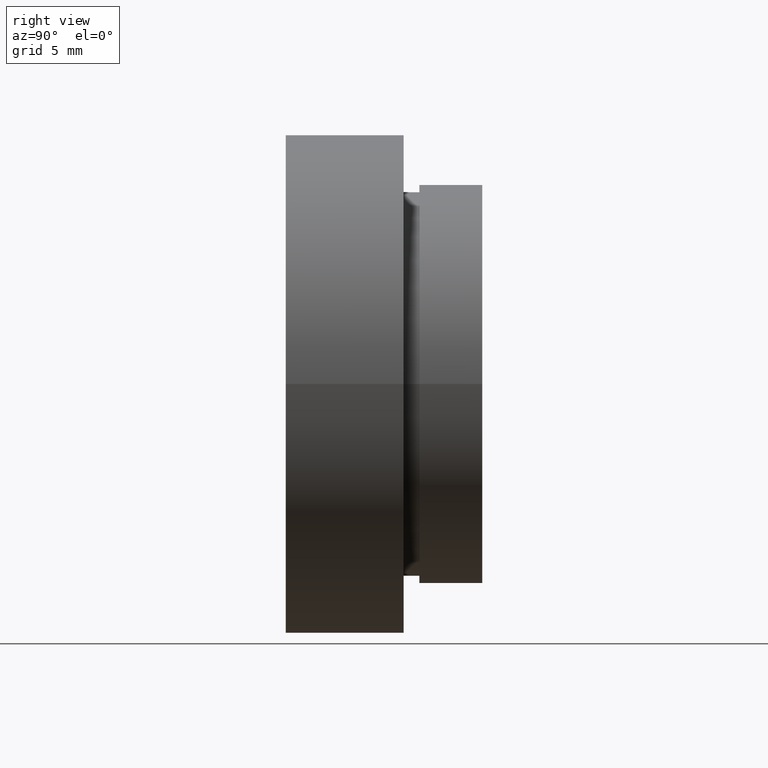
[diagram: clean part render]
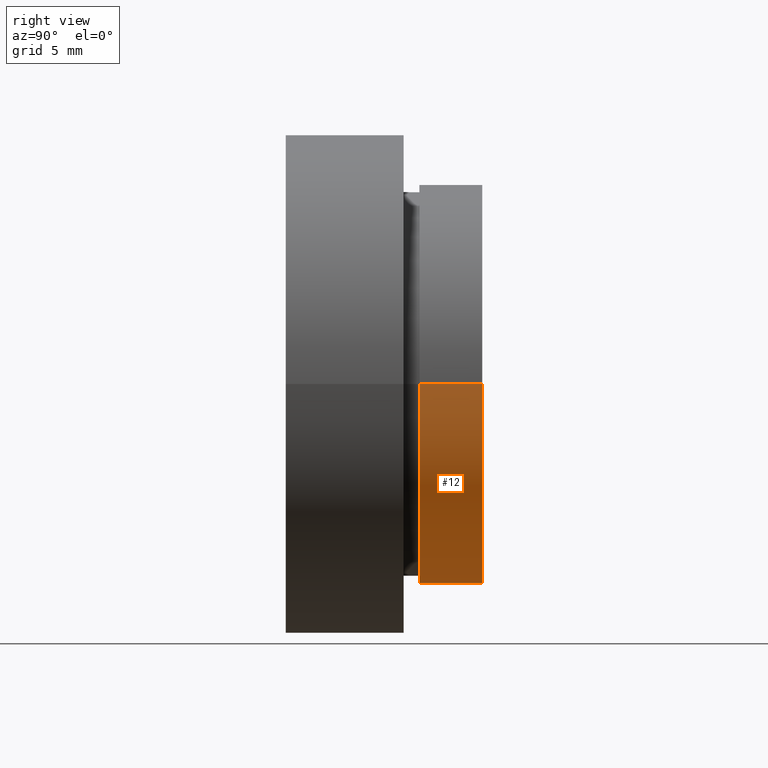
[diagram: same view with one face highlighted and labeled with its STEP entity id]
A machine part, right view. The second image highlights one B-rep face of the part: STEP entity #12.
In plain terms, the highlighted cylindrical surface (partial cylindrical patch) has radius 12.71 mm, axis along (-0, 1, -0).
Its self-contained STEP definition (entity closure, byte-faithful):
#12 = ADVANCED_FACE ( 'NONE', ( #354 ), #20, .T. ) ;
#20 = CYLINDRICAL_SURFACE ( 'NONE', #343, 12.70999999999999900 ) ;
#21 = CARTESIAN_POINT ( 'NONE',  ( 12.70999999999999900, 16.88601823708207700, 1.556526081716285800E-015 ) ) ;
#22 = CIRCLE ( 'NONE', #285, 12.71000000000000100 ) ;
#62 = ORIENTED_EDGE ( 'NONE', *, *, #193, .F. ) ;
#68 = VECTOR ( 'NONE', #229, 1000.000000000000000 ) ;
#71 = EDGE_CURVE ( 'NONE', #438, #591, #107, .T. ) ;
#82 = AXIS2_PLACEMENT_3D ( 'NONE', #549, #329, #174 ) ;
#100 = LINE ( 'NONE', #21, #68 ) ;
#107 = CIRCLE ( 'NONE', #82, 12.70999999999999900 ) ;
#117 = DIRECTION ( 'NONE',  ( -1.000000000000000000, 0.0000000000000000000, 0.0000000000000000000 ) ) ;
#121 = CARTESIAN_POINT ( 'NONE',  ( 0.0000000000000000000, 16.88601823708207700, 0.0000000000000000000 ) ) ;
#156 = CARTESIAN_POINT ( 'NONE',  ( 5.371323195044474300E-016, 12.49999999999999600, 0.0000000000000000000 ) ) ;
#172 = CARTESIAN_POINT ( 'NONE',  ( 12.71000000000000300, 12.49999999999999800, 1.556526081716286200E-015 ) ) ;
#174 = DIRECTION ( 'NONE',  ( -1.000000000000000000, -1.364849312334230700E-016, 0.0000000000000000000 ) ) ;
#193 = EDGE_CURVE ( 'NONE', #322, #257, #22, .T. ) ;
#222 = DIRECTION ( 'NONE',  ( -1.224646799147351000E-016, 1.000000000000000000, -0.0000000000000000000 ) ) ;
#229 = DIRECTION ( 'NONE',  ( -1.224646799147351000E-016, 1.000000000000000000, -0.0000000000000000000 ) ) ;
#257 = VERTEX_POINT ( 'NONE', #272 ) ;
#272 = CARTESIAN_POINT ( 'NONE',  ( -12.71000000000000100, 12.49999999999999500, 0.0000000000000000000 ) ) ;
#276 = EDGE_CURVE ( 'NONE', #438, #322, #100, .T. ) ;
#281 = VECTOR ( 'NONE', #451, 1000.000000000000000 ) ;
#285 = AXIS2_PLACEMENT_3D ( 'NONE', #156, #397, #481 ) ;
#291 = EDGE_CURVE ( 'NONE', #591, #257, #556, .T. ) ;
#322 = VERTEX_POINT ( 'NONE', #172 ) ;
#324 = ORIENTED_EDGE ( 'NONE', *, *, #291, .T. ) ;
#329 = DIRECTION ( 'NONE',  ( -1.224646799147351000E-016, 1.000000000000000000, -0.0000000000000000000 ) ) ;
#343 = AXIS2_PLACEMENT_3D ( 'NONE', #121, #222, #117 ) ;
#354 = FACE_OUTER_BOUND ( 'NONE', #415, .T. ) ;
#397 = DIRECTION ( 'NONE',  ( -1.224646799147351000E-016, 1.000000000000000000, -0.0000000000000000000 ) ) ;
#415 = EDGE_LOOP ( 'NONE', ( #439, #561, #324, #62 ) ) ;
#431 = CARTESIAN_POINT ( 'NONE',  ( -12.70999999999999700, 8.499999999999996400, 0.0000000000000000000 ) ) ;
#438 = VERTEX_POINT ( 'NONE', #615 ) ;
#439 = ORIENTED_EDGE ( 'NONE', *, *, #276, .F. ) ;
#446 = CARTESIAN_POINT ( 'NONE',  ( -12.70999999999999900, 16.88601823708207700, 0.0000000000000000000 ) ) ;
#451 = DIRECTION ( 'NONE',  ( -1.224646799147351000E-016, 1.000000000000000000, -0.0000000000000000000 ) ) ;
#481 = DIRECTION ( 'NONE',  ( -1.000000000000000000, -1.364849312334230500E-016, 0.0000000000000000000 ) ) ;
#549 = CARTESIAN_POINT ( 'NONE',  ( 1.026991039163387700E-015, 8.499999999999998200, 0.0000000000000000000 ) ) ;
#556 = LINE ( 'NONE', #446, #281 ) ;
#561 = ORIENTED_EDGE ( 'NONE', *, *, #71, .T. ) ;
#591 = VERTEX_POINT ( 'NONE', #431 ) ;
#615 = CARTESIAN_POINT ( 'NONE',  ( 12.71000000000000300, 8.500000000000000000, 1.556526081716286200E-015 ) ) ;